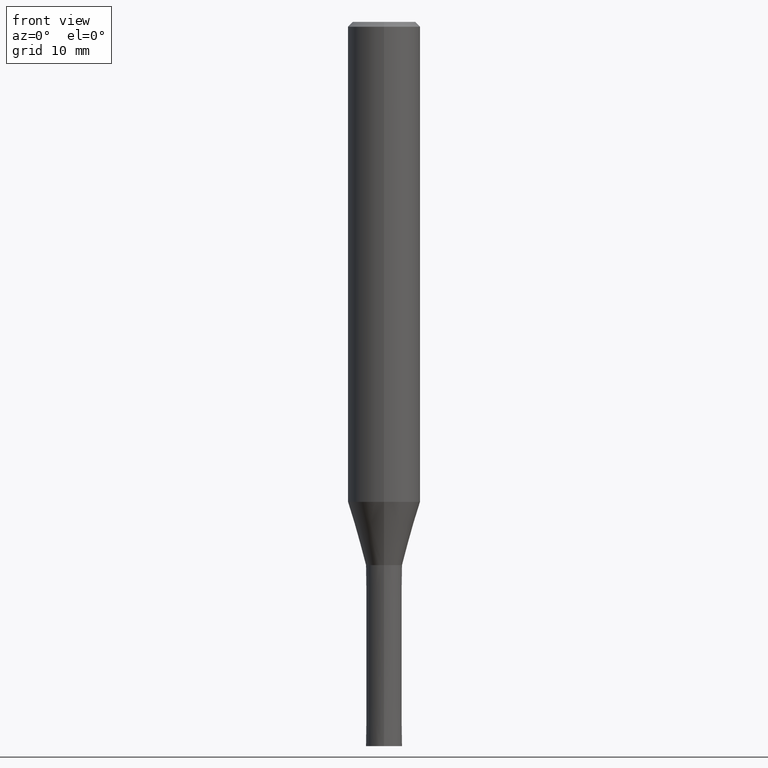
[diagram: clean part render]
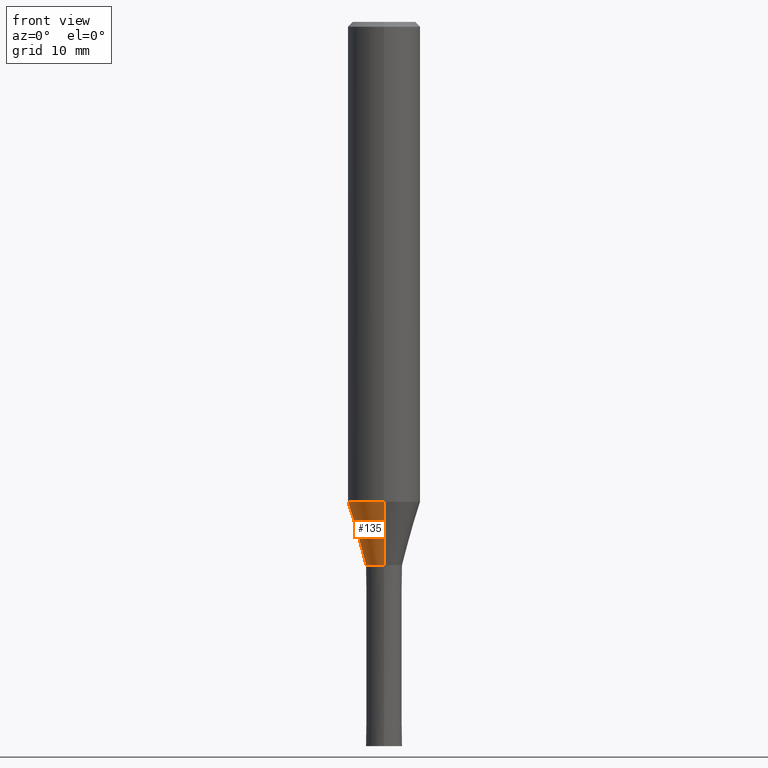
[diagram: same view with one face highlighted and labeled with its STEP entity id]
A machine part, front view. The second image highlights one B-rep face of the part: STEP entity #135.
In plain terms, the highlighted conical surface has half-angle 16 deg.
Its self-contained STEP definition (entity closure, byte-faithful):
#125=VERTEX_POINT('',#296);
#135=ADVANCED_FACE('',(#306),#307,.T.);
#155=VERTEX_POINT('',#332);
#171=EDGE_CURVE('',#231,#197,#349,.T.);
#175=EDGE_CURVE('',#197,#155,#353,.T.);
#197=VERTEX_POINT('',#378);
#205=EDGE_CURVE('',#155,#125,#388,.T.);
#217=EDGE_CURVE('',#231,#125,#401,.T.);
#231=VERTEX_POINT('',#415);
#296=CARTESIAN_POINT('',(0.0,1.49995,-45.0));
#306=FACE_OUTER_BOUND('',#501,.T.);
#307=CONICAL_SURFACE('',#502,2.24995,0.279258842899557);
#332=CARTESIAN_POINT('',(0.0,2.99995,-39.769));
#349=LINE('',#554,#555);
#353=CIRCLE('',#562,2.99995);
#378=CARTESIAN_POINT('',(3.67375783114944E-016,-2.99995,-39.769));
#388=LINE('',#604,#605);
#401=CIRCLE('',#621,1.49995);
#415=CARTESIAN_POINT('',(1.83684830041587E-016,-1.49995,-45.0));
#501=EDGE_LOOP('',(#699,#700,#701,#702));
#502=AXIS2_PLACEMENT_3D('',#703,#704,#705);
#554=CARTESIAN_POINT('',(2.75530306578266E-016,-2.24995,-42.3845));
#555=VECTOR('',#766,1.0);
#562=AXIS2_PLACEMENT_3D('',#768,#769,#770);
#604=CARTESIAN_POINT('',(-2.75530306578266E-016,2.24995,-42.3845));
#605=VECTOR('',#821,1.0);
#621=AXIS2_PLACEMENT_3D('',#833,#834,#835);
#699=ORIENTED_EDGE('',*,*,#205,.T.);
#700=ORIENTED_EDGE('',*,*,#217,.F.);
#701=ORIENTED_EDGE('',*,*,#171,.T.);
#702=ORIENTED_EDGE('',*,*,#175,.T.);
#703=CARTESIAN_POINT('',(0.0,0.0,-42.3845));
#704=DIRECTION('',(-0.0,-0.0,1.0));
#705=DIRECTION('',(0.0,1.0,0.0));
#766=DIRECTION('',(3.37554511665356E-017,-0.275643279664313,0.961259997282682));
#768=CARTESIAN_POINT('',(0.0,0.0,-39.769));
#769=DIRECTION('',(0.0,0.0,-1.0));
#770=DIRECTION('',(0.0,1.0,0.0));
#821=DIRECTION('',(3.37554511665356E-017,-0.275643279664313,-0.961259997282682));
#833=CARTESIAN_POINT('',(0.0,0.0,-45.0));
#834=DIRECTION('',(0.0,0.0,-1.0));
#835=DIRECTION('',(0.0,1.0,0.0));